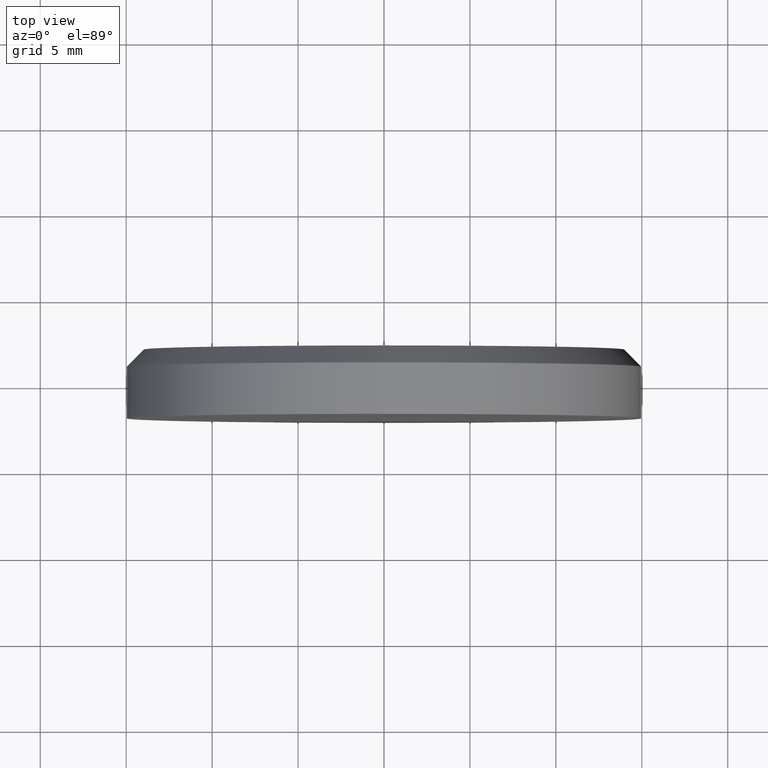
[diagram: clean part render]
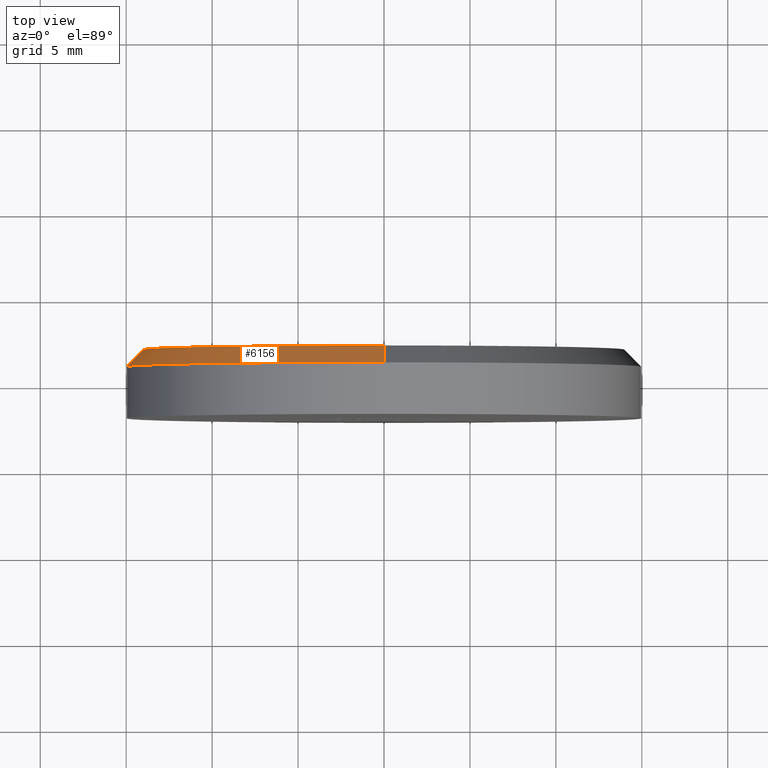
[diagram: same view with one face highlighted and labeled with its STEP entity id]
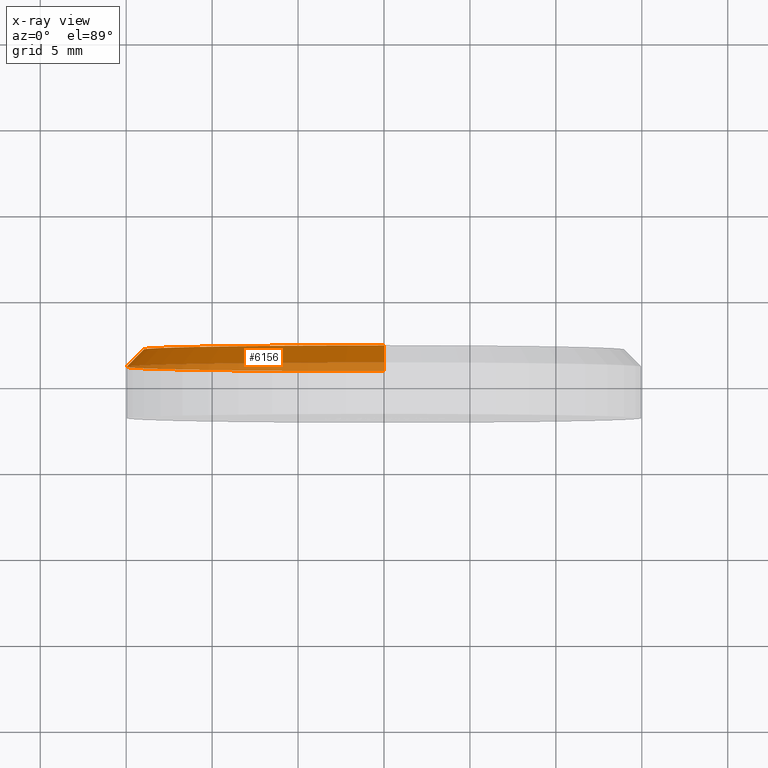
[diagram: x-ray of the same camera — body ghosted, the highlighted face saturated]
A machine part, top view. The second image highlights one B-rep face of the part: STEP entity #6156.
The next image is the same camera in x-ray: the body ghosted, the highlighted face saturated — about 30% of this face is hidden behind the body in this view.
In plain terms, the highlighted conical surface has half-angle 45 deg.
Its self-contained STEP definition (entity closure, byte-faithful):
#274 = DIRECTION ( 'NONE',  ( 0.000000000000000000, 0.000000000000000000, 1.000000000000000000 ) ) ;
#531 = AXIS2_PLACEMENT_3D ( 'NONE', #1592, #14638, #14534 ) ;
#658 = DIRECTION ( 'NONE',  ( 0.000000000000000000, -0.7071067811865493491, -0.7071067811865456854 ) ) ;
#933 = FACE_OUTER_BOUND ( 'NONE', #1457, .T. ) ;
#1105 = CARTESIAN_POINT ( 'NONE',  ( 0.000000000000000000, 0.9999999999999852340, -15.00000000000000000 ) ) ;
#1187 = CARTESIAN_POINT ( 'NONE',  ( 0.000000000000000000, 2.000000000000000000, 0.000000000000000000 ) ) ;
#1229 = EDGE_CURVE ( 'NONE', #12066, #9654, #14805, .T. ) ;
#1397 = CIRCLE ( 'NONE', #10431, 15.00000000000000000 ) ;
#1457 = EDGE_LOOP ( 'NONE', ( #6228, #8494, #8422, #2293 ) ) ;
#1592 = CARTESIAN_POINT ( 'NONE',  ( 0.000000000000000000, 2.000000000000000000, 0.000000000000000000 ) ) ;
#2017 = VECTOR ( 'NONE', #13527, 1000.000000000000114 ) ;
#2117 = VERTEX_POINT ( 'NONE', #12398 ) ;
#2262 = DIRECTION ( 'NONE',  ( 0.000000000000000000, -1.000000000000000000, 0.000000000000000000 ) ) ;
#2293 = ORIENTED_EDGE ( 'NONE', *, *, #13698, .F. ) ;
#3839 = CARTESIAN_POINT ( 'NONE',  ( 1.714505518806293257E-15, 2.000000000000000000, 13.99999999999998934 ) ) ;
#4642 = DIRECTION ( 'NONE',  ( 0.000000000000000000, 0.000000000000000000, -1.000000000000000000 ) ) ;
#5742 = LINE ( 'NONE', #14775, #6677 ) ;
#5755 = CONICAL_SURFACE ( 'NONE', #8005, 13.99999999999998934, 0.7853981633974456145 ) ;
#6135 = CARTESIAN_POINT ( 'NONE',  ( 0.000000000000000000, 2.000000000000000000, -13.99999999999998934 ) ) ;
#6156 = ADVANCED_FACE ( 'NONE', ( #933 ), #5755, .T. ) ;
#6228 = ORIENTED_EDGE ( 'NONE', *, *, #9075, .F. ) ;
#6677 = VECTOR ( 'NONE', #658, 1000.000000000000114 ) ;
#7248 = CARTESIAN_POINT ( 'NONE',  ( 1.775737858763661226E-15, 2.000000000000000000, 13.99999999999998934 ) ) ;
#8005 = AXIS2_PLACEMENT_3D ( 'NONE', #1187, #2262, #4642 ) ;
#8422 = ORIENTED_EDGE ( 'NONE', *, *, #9241, .T. ) ;
#8494 = ORIENTED_EDGE ( 'NONE', *, *, #1229, .F. ) ;
#9075 = EDGE_CURVE ( 'NONE', #9654, #2117, #13930, .T. ) ;
#9241 = EDGE_CURVE ( 'NONE', #12066, #9954, #5742, .T. ) ;
#9654 = VERTEX_POINT ( 'NONE', #7248 ) ;
#9702 = CARTESIAN_POINT ( 'NONE',  ( 0.000000000000000000, 0.9999999999999852340, 0.000000000000000000 ) ) ;
#9802 = DIRECTION ( 'NONE',  ( 0.000000000000000000, -1.000000000000000000, 0.000000000000000000 ) ) ;
#9954 = VERTEX_POINT ( 'NONE', #1105 ) ;
#10431 = AXIS2_PLACEMENT_3D ( 'NONE', #9702, #9802, #274 ) ;
#12066 = VERTEX_POINT ( 'NONE', #6135 ) ;
#12398 = CARTESIAN_POINT ( 'NONE',  ( 1.836970198721029589E-15, 0.9999999999999852340, 15.00000000000000000 ) ) ;
#13527 = DIRECTION ( 'NONE',  ( 8.659560562354909439E-17, -0.7071067811865493491, 0.7071067811865456854 ) ) ;
#13698 = EDGE_CURVE ( 'NONE', #2117, #9954, #1397, .T. ) ;
#13930 = LINE ( 'NONE', #3839, #2017 ) ;
#14534 = DIRECTION ( 'NONE',  ( 0.000000000000000000, 0.000000000000000000, 1.000000000000000000 ) ) ;
#14638 = DIRECTION ( 'NONE',  ( 0.000000000000000000, 1.000000000000000000, 0.000000000000000000 ) ) ;
#14775 = CARTESIAN_POINT ( 'NONE',  ( 0.000000000000000000, 2.000000000000000000, -13.99999999999998934 ) ) ;
#14805 = CIRCLE ( 'NONE', #531, 13.99999999999998934 ) ;